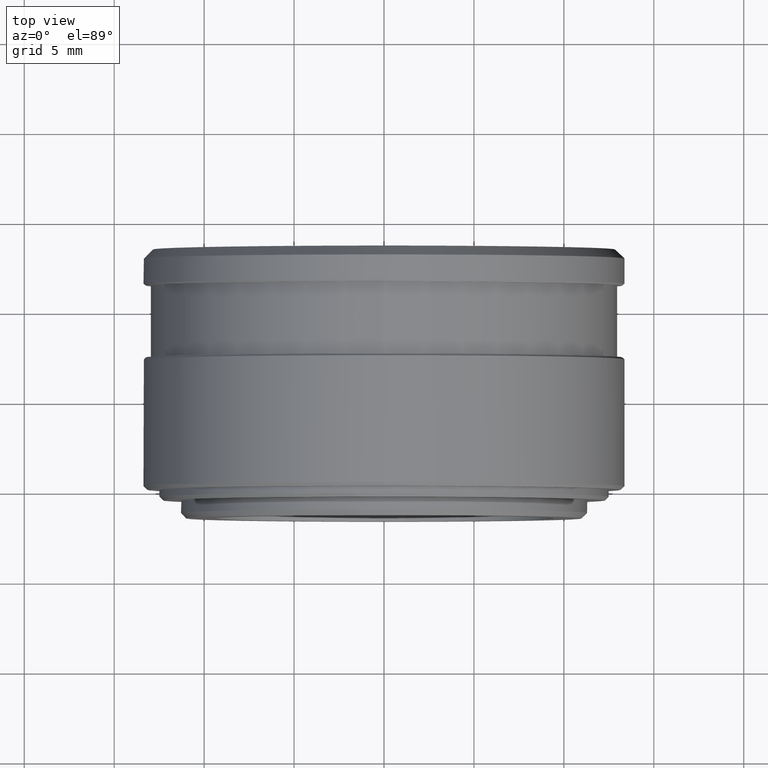
[diagram: clean part render]
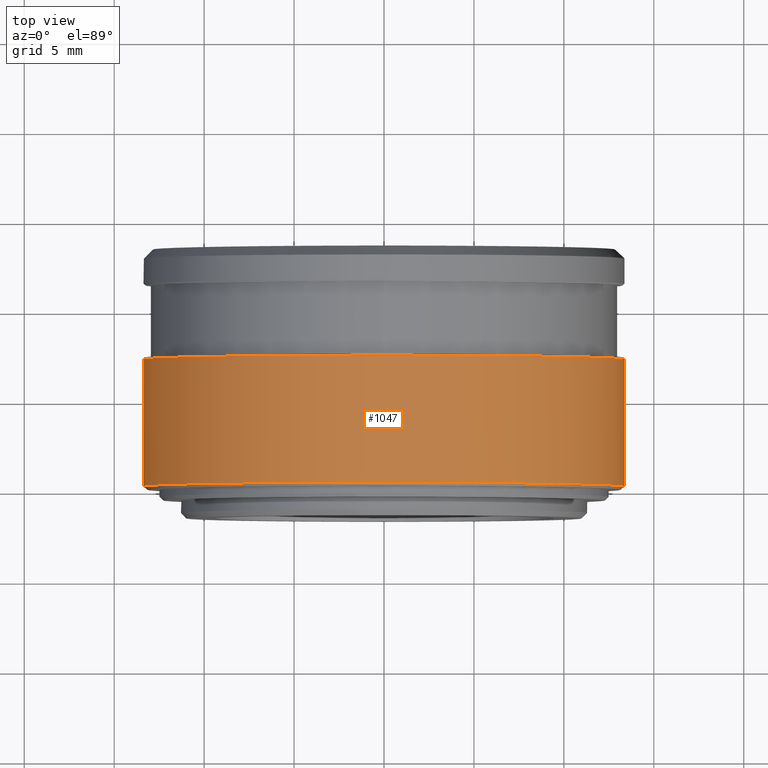
[diagram: same view with one face highlighted and labeled with its STEP entity id]
A machine part, top view. The second image highlights one B-rep face of the part: STEP entity #1047.
In plain terms, the highlighted cylindrical surface (bore or boss wall) has radius 13.37 mm, axis along (0, 1, 0).
Its self-contained STEP definition (entity closure, byte-faithful):
#7 = DIRECTION ( 'NONE',  ( 0.000000000000000000, -1.000000000000000000, 0.000000000000000000 ) ) ;
#12 = DIRECTION ( 'NONE',  ( -0.000000000000000000, -1.000000000000000000, -0.000000000000000000 ) ) ;
#46 = EDGE_LOOP ( 'NONE', ( #390 ) ) ;
#224 = FACE_OUTER_BOUND ( 'NONE', #316, .T. ) ;
#307 = CARTESIAN_POINT ( 'NONE',  ( -13.37000000000000099, 0.2000015559999999970, 0.000000000000000000 ) ) ;
#316 = EDGE_LOOP ( 'NONE', ( #978 ) ) ;
#390 = ORIENTED_EDGE ( 'NONE', *, *, #624, .F. ) ;
#517 = CARTESIAN_POINT ( 'NONE',  ( 0.000000000000000000, 7.261290761000016580, 0.000000000000000000 ) ) ;
#624 = EDGE_CURVE ( 'NONE', #1124, #1124, #987, .T. ) ;
#651 = CARTESIAN_POINT ( 'NONE',  ( 13.37000000000000099, 7.261290761000000593, 0.000000000000000000 ) ) ;
#789 = DIRECTION ( 'NONE',  ( 0.000000000000000000, 1.000000000000000000, 0.000000000000000000 ) ) ;
#855 = CIRCLE ( 'NONE', #1507, 13.37000000000000099 ) ;
#978 = ORIENTED_EDGE ( 'NONE', *, *, #1654, .T. ) ;
#987 = CIRCLE ( 'NONE', #1388, 13.37000000000000099 ) ;
#1047 = ADVANCED_FACE ( 'NONE', ( #1436, #224 ), #1576, .T. ) ;
#1124 = VERTEX_POINT ( 'NONE', #307 ) ;
#1337 = DIRECTION ( 'NONE',  ( 0.000000000000000000, 0.000000000000000000, 1.000000000000000000 ) ) ;
#1349 = VERTEX_POINT ( 'NONE', #651 ) ;
#1353 = CARTESIAN_POINT ( 'NONE',  ( 0.000000000000000000, 0.2000015560000012460, 0.000000000000000000 ) ) ;
#1388 = AXIS2_PLACEMENT_3D ( 'NONE', #1353, #12, #1515 ) ;
#1436 = FACE_OUTER_BOUND ( 'NONE', #46, .T. ) ;
#1467 = CARTESIAN_POINT ( 'NONE',  ( 0.000000000000000000, 0.2000015559999999970, 0.000000000000000000 ) ) ;
#1507 = AXIS2_PLACEMENT_3D ( 'NONE', #517, #7, #1596 ) ;
#1515 = DIRECTION ( 'NONE',  ( -1.000000000000000000, -9.325598342246297420E-17, 0.000000000000000000 ) ) ;
#1576 = CYLINDRICAL_SURFACE ( 'NONE', #1591, 13.37000000000000099 ) ;
#1591 = AXIS2_PLACEMENT_3D ( 'NONE', #1467, #789, #1337 ) ;
#1596 = DIRECTION ( 'NONE',  ( 1.000000000000000000, -1.167727096768231990E-15, 0.000000000000000000 ) ) ;
#1654 = EDGE_CURVE ( 'NONE', #1349, #1349, #855, .T. ) ;